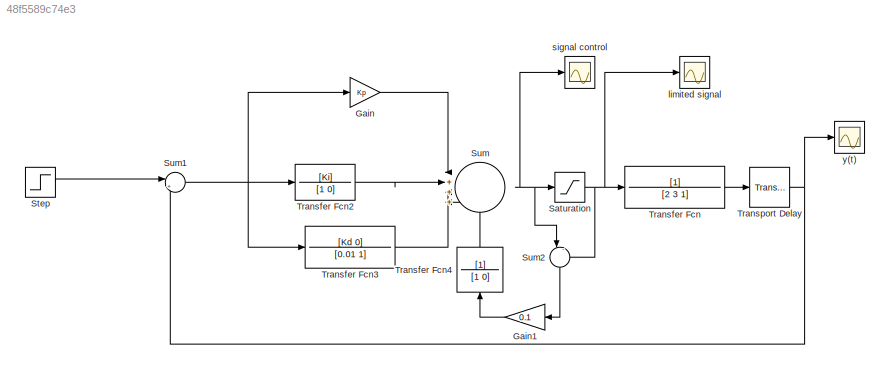
MODEL slx_48f5589c74e3
KIND model
CONFIG AbsTol = auto
CONFIG EnableMultiTasking = off
CONFIG FixedStep = auto
CONFIG MaxStep = auto
CONFIG MinStep = auto
CONFIG RelTol = 1e-3
CONFIG SampleTimeConstraint = Unconstrained
CONFIG SolverName = VariableStepAuto
CONFIG StartTime = 0.0
CONFIG StopTime = 20
BLOCK [Gain] Gain
  Gain = Kp
BLOCK [Gain] Gain1
  Gain = 0.1
  NameLocation = top
BLOCK [Saturate] Saturation
  LowerLimit = -15
  UpperLimit = 15
BLOCK [Step] Step
  SampleTime = 0
  Time = 0
BLOCK [Sum] Sum
  Inputs = |++++
  Ports = [4, 1]
BLOCK [Sum] Sum1
  Inputs = |+-
  Ports = [2, 1]
BLOCK [Sum] Sum2
  Inputs = |-+
  NameLocation = left
  Ports = [2, 1]
BLOCK [TransferFcn] Transfer Fcn
  Denominator = [2 3 1]
BLOCK [TransferFcn] Transfer Fcn2
  Denominator = [1 0]
  Numerator = [Ki]
BLOCK [TransferFcn] Transfer Fcn3
  Denominator = [0.01 1]
  Numerator = [Kd 0]
BLOCK [TransferFcn] Transfer Fcn4
  Denominator = [1 0]
  NameLocation = right
BLOCK [TransportDelay] Transport Delay
  Ports = [1, 1]
BLOCK [Scope] limited signal
  Floating = off
  NumInputPorts = 1
  Ports = [1]
  ScopeSpecificationString = Simulink.scopes.TimeScopeBlockCfg('CurrentConfiguration', extmgr.ConfigurationSet(extmgr.Configuration('Core','General UI',true),extmgr.Configuration('Core','Source UI',true),extmgr.Configuration('Sources','WiredSimulink',true,'DataLoggingVariableName','ScopeData4'),extmgr.Configuration('Visuals','Time Domain',true,'SerializedDisplays',{struct('MinYLimReal','-2.08391','MaxYLimReal','16.89821','YLa...<+1399ch>
BLOCK [Scope] signal control
  Floating = off
  NumInputPorts = 1
  Ports = [1]
  ScopeSpecificationString = Simulink.scopes.TimeScopeBlockCfg('CurrentConfiguration', extmgr.ConfigurationSet(extmgr.Configuration('Core','General UI',true),extmgr.Configuration('Core','Source UI',true),extmgr.Configuration('Sources','WiredSimulink',true,'DataLoggingVariableName','ScopeData1'),extmgr.Configuration('Visuals','Time Domain',true,'SerializedDisplays',{struct('MinYLimReal','-34.80265','MaxYLimReal','311.36688','Y...<+1398ch>
BLOCK [Scope] y(t)
  Floating = off
  NumInputPorts = 1
  Ports = [1]
  ScopeSpecificationString = Simulink.scopes.TimeScopeBlockCfg('CurrentConfiguration', extmgr.ConfigurationSet(extmgr.Configuration('Core','General UI',true),extmgr.Configuration('Core','Source UI',true),extmgr.Configuration('Sources','WiredSimulink',true),extmgr.Configuration('Visuals','Time Domain',true,'SerializedDisplays',{struct('MinYLimReal','-0.13432','MaxYLimReal','1.2089','YLabelReal','','MinYLimMag','0.00000','MaxYL...<+1935ch>
LINE Gain1:1 -> Transfer Fcn4:1
LINE Gain:1 -> Sum:1
NET Saturation:1 -> Sum2:2, Transfer Fcn:1, limited signal:1
LINE Step:1 -> Sum1:1
NET Sum1:1 -> Gain:1, Transfer Fcn2:1, Transfer Fcn3:1
LINE Sum2:1 -> Gain1:1
NET Sum:1 -> Saturation:1, Sum2:1, signal control:1
LINE Transfer Fcn2:1 -> Sum:2
LINE Transfer Fcn3:1 -> Sum:3
LINE Transfer Fcn4:1 -> Sum:4
LINE Transfer Fcn:1 -> Transport Delay:1
NET Transport Delay:1 -> Sum1:2, y(t):1
note: NET lines group one-source signal fan-out (src -> all destinations, sorted); 1:1 wires keep LINE
